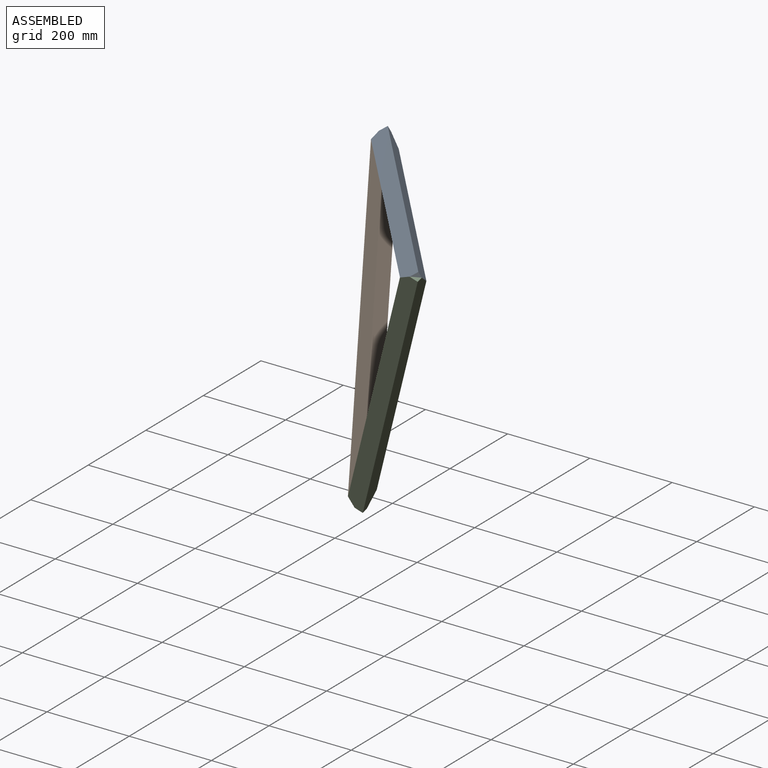
[diagram: assembled view]
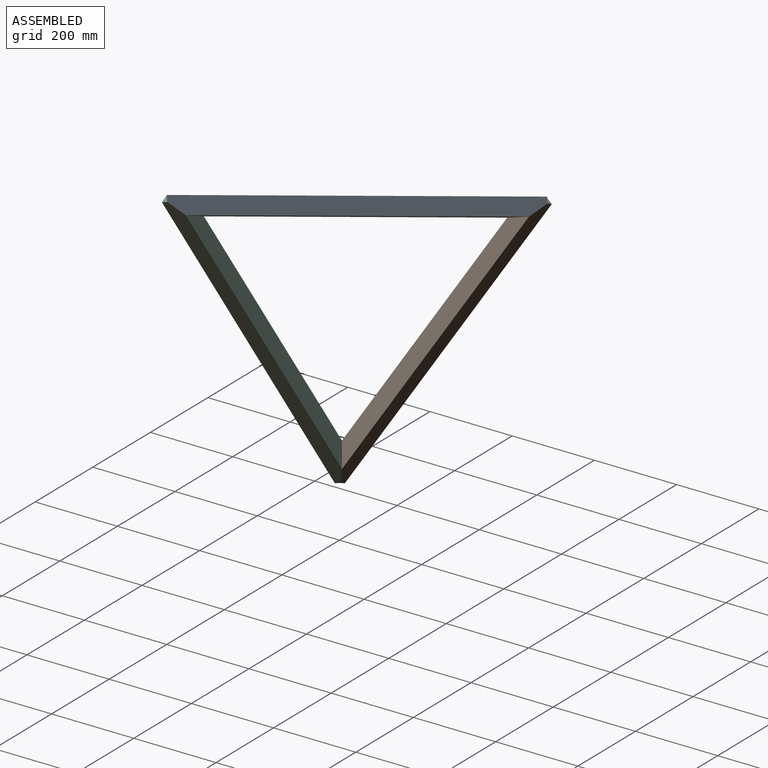
[diagram: assembled view, second angle]
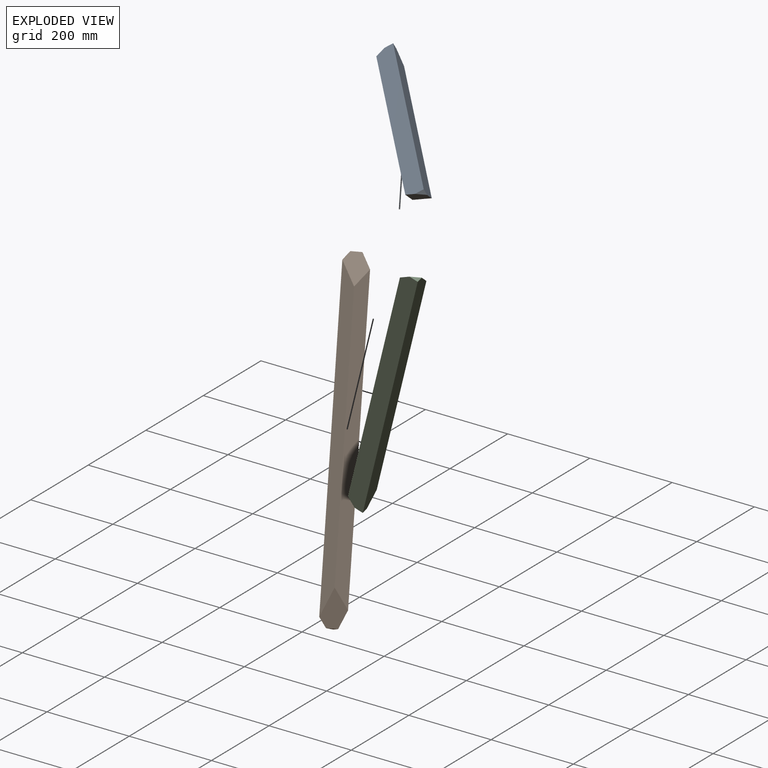
[diagram: exploded view]
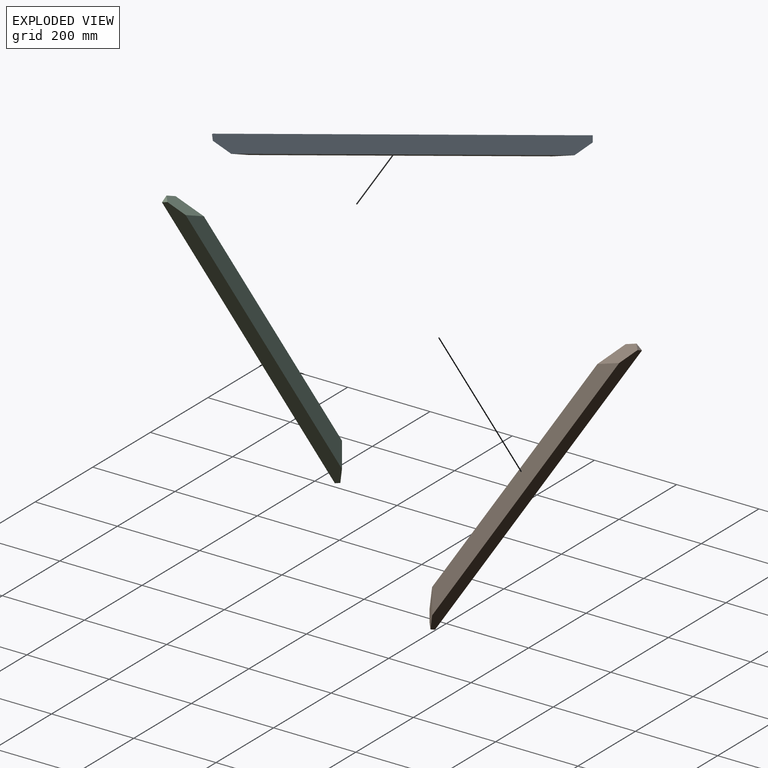
[diagram: exploded view, second angle]
ASSEMBLY  parts=3 mates=3
PART A: 8 faces, bbox 760x40x40 mm
  f0: plane 760x40mm, normal (0,1,0), area 29454.4mm2, adj f1,f2,f4,f5,f6,f7
  f1: plane 760x40mm, normal (0,0,1), area 30000mm2, adj f0,f2,f3,f5,f6,f7
  f2: plane 76.57x40mm, normal (0.5,-0.5,-0.71), area 2917.2mm2, adj f0,f1,f3,f4,f6
  f3: plane 720x40mm, normal (0,-1,0), area 26537.3mm2, adj f1,f2,f4,f5
  f4: plane 686.86x40mm, normal (0,0,-1), area 25874.5mm2, adj f0,f2,f3,f5
  f5: plane 76.57x40mm, normal (-0.5,-0.5,-0.71), area 2917.2mm2, adj f0,f1,f3,f4,f7
  f6: plane 20x14.14mm, normal (1,0,0), area 141.4mm2, adj f0,f1,f2
  f7: plane 20x14.14mm, normal (-1,0,0), area 141.4mm2, adj f0,f1,f5
PART B: same geometry as A
PART C: same geometry as A
PLACE A rot(axis=(0.44,-0.26,-0.86),56.8deg) t=(-138.9,-35.69,154.94)mm
PLACE B rot(axis=(-0.29,-0.95,0.1),112.2deg) t=(-271.85,65.84,-154.45)mm
PLACE C rot(axis=(0.48,0.7,-0.52),142.4deg) t=(-47.84,-204.91,-139.64)mm
MATE fastened C.f5 <-> A.f2  axis (-0.26,0.48,0.84) through (82.66,-304.17,167.69)mm
MATE fastened C.f2 <-> B.f5  axis (-0.64,0.77,-0.04) through (-180.67,-103.07,-445.12)mm
MATE fastened B.f2 <-> A.f5  axis (0.38,-0.29,0.88) through (-361.04,232.11,138.36)mm
